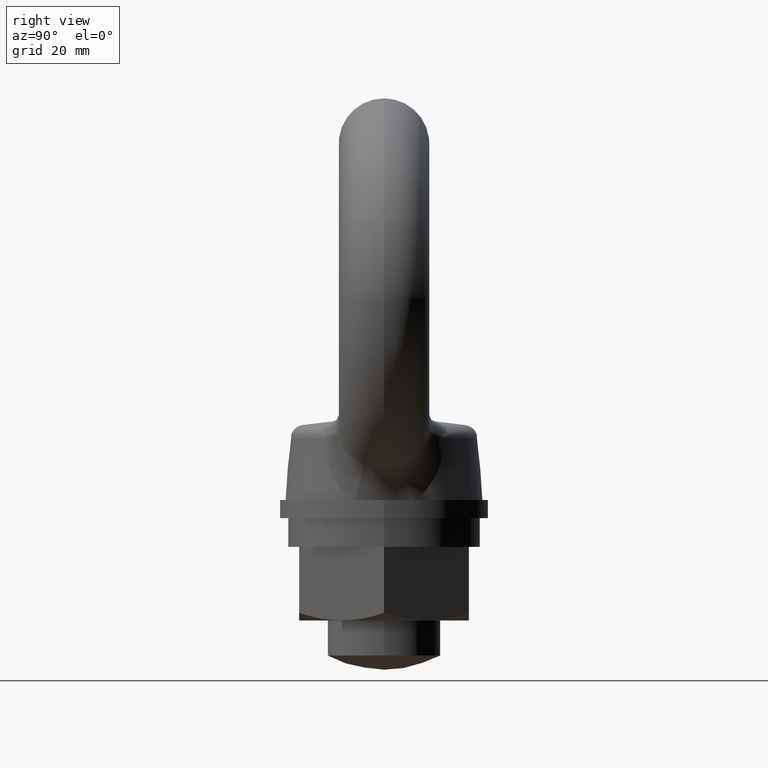
[diagram: clean part render]
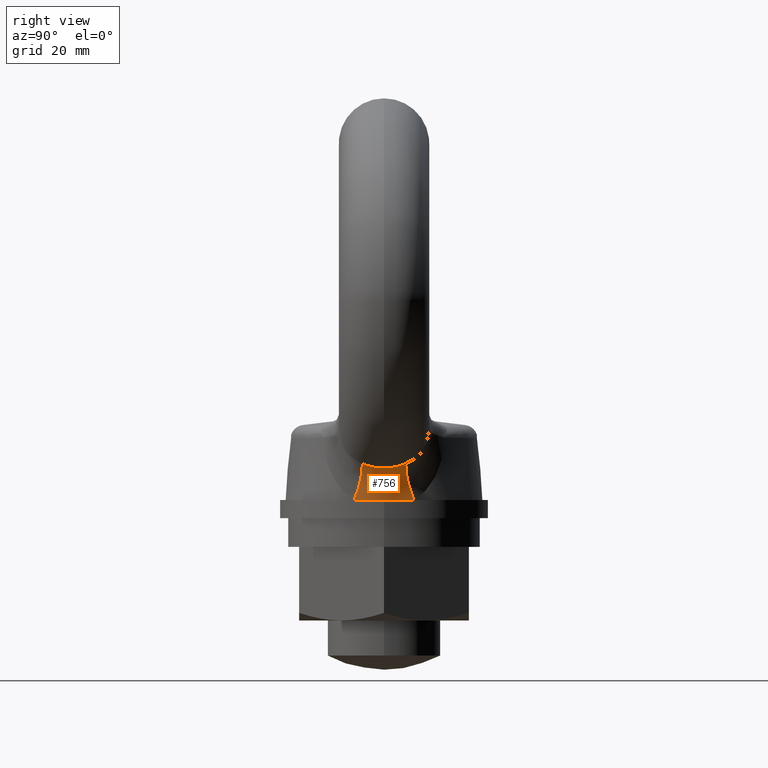
[diagram: same view with one face highlighted and labeled with its STEP entity id]
A machine part, right view. The second image highlights one B-rep face of the part: STEP entity #756.
In plain terms, the highlighted face is a freeform B-spline surface patch.
Its self-contained STEP definition (entity closure, byte-faithful):
#1 = CARTESIAN_POINT ( 'NONE',  ( 19.12252665471698900, -1.137490150262186100, -30.84726181569379800 ) ) ;
#2 = CARTESIAN_POINT ( 'NONE',  ( 18.78253945220220800, -1.164999154925600000, -31.30640718851755000 ) ) ;
#3 = CARTESIAN_POINT ( 'NONE',  ( 18.49487072539962200, -1.199868535759774700, -31.79580678264857200 ) ) ;
#4 = CARTESIAN_POINT ( 'NONE',  ( 18.20720199859703900, -1.234737916593949200, -32.28520637677959800 ) ) ;
#5 = CARTESIAN_POINT ( 'NONE',  ( 17.97187154556799300, -1.276965275118276500, -32.80482651067328000 ) ) ;
#6 = CARTESIAN_POINT ( 'NONE',  ( 17.79419548573249400, -1.325596959128234800, -33.34292899466400000 ) ) ;
#7 = CARTESIAN_POINT ( 'NONE',  ( 17.61651942589699600, -1.374228643138192900, -33.88103147865472000 ) ) ;
#8 = CARTESIAN_POINT ( 'NONE',  ( 17.49650998747498700, -1.429261307541510800, -34.43757927929896600 ) ) ;
#9 = CARTESIAN_POINT ( 'NONE',  ( 17.43687821175856100, -1.489452111349638000, -35.00000000000000000 ) ) ;
#10 = CARTESIAN_POINT ( 'NONE',  ( 20.79061498668968600, -1.000234474706745100, -29.31270074958353400 ) ) ;
#11 = CARTESIAN_POINT ( 'NONE',  ( 20.32733076305138600, -1.003390029220476700, -29.64080675759947800 ) ) ;
#12 = CARTESIAN_POINT ( 'NONE',  ( 19.89887903144929700, -1.014129462028976700, -30.01798959434681500 ) ) ;
#13 = CARTESIAN_POINT ( 'NONE',  ( 19.51490355737745800, -1.032211045619190200, -30.43575947542821700 ) ) ;
#14 = CARTESIAN_POINT ( 'NONE',  ( 19.13092808330561900, -1.050292629209403700, -30.85352935650961800 ) ) ;
#15 = CARTESIAN_POINT ( 'NONE',  ( 18.79145510164575200, -1.075715128168553100, -31.31185773806184600 ) ) ;
#16 = CARTESIAN_POINT ( 'NONE',  ( 18.50412560806953300, -1.107906322570446200, -31.80042837882610800 ) ) ;
#17 = CARTESIAN_POINT ( 'NONE',  ( 18.21679611449330900, -1.140097516972339100, -32.28899901959037100 ) ) ;
#18 = CARTESIAN_POINT ( 'NONE',  ( 17.98162974060688800, -1.179055207373952000, -32.80777853828624300 ) ) ;
#19 = CARTESIAN_POINT ( 'NONE',  ( 17.80391970661353100, -1.223902518265836700, -33.34509003492151900 ) ) ;
#20 = CARTESIAN_POINT ( 'NONE',  ( 17.62620967262017000, -1.268749829157721500, -33.88240153155678800 ) ) ;
#21 = CARTESIAN_POINT ( 'NONE',  ( 17.50596812044570400, -1.319483696375689300, -34.43820829466285000 ) ) ;
#22 = CARTESIAN_POINT ( 'NONE',  ( 17.44590149575548900, -1.374962181442269000, -35.00000000000000000 ) ) ;
#23 = CARTESIAN_POINT ( 'NONE',  ( 20.81240739417937700, -0.6668110214211846500, -29.34875718951726900 ) ) ;
#24 = CARTESIAN_POINT ( 'NONE',  ( 20.35259575383045300, -0.6693860478188095000, -29.67459525035880900 ) ) ;
#25 = CARTESIAN_POINT ( 'NONE',  ( 19.92728547055703800, -0.6769056562285887800, -30.04905342392270000 ) ) ;
#26 = CARTESIAN_POINT ( 'NONE',  ( 19.54590963410858300, -0.6892041006134278500, -30.46382647184779900 ) ) ;
#27 = CARTESIAN_POINT ( 'NONE',  ( 19.16453379766012700, -0.7015025449982669200, -30.87859951977289800 ) ) ;
#28 = CARTESIAN_POINT ( 'NONE',  ( 18.82711769941994000, -0.7185790211403582100, -31.33365993623905200 ) ) ;
#29 = CARTESIAN_POINT ( 'NONE',  ( 18.54114513874916900, -0.7400574698131242600, -31.81891476353625200 ) ) ;
#30 = CARTESIAN_POINT ( 'NONE',  ( 18.25517257807840100, -0.7615359184858903100, -32.30416959083345300 ) ) ;
#31 = CARTESIAN_POINT ( 'NONE',  ( 18.02066252076245700, -0.7874149363966451700, -32.81958664873813100 ) ) ;
#32 = CARTESIAN_POINT ( 'NONE',  ( 17.84281659013766200, -0.8171247548162354800, -33.35373419595160300 ) ) ;
#33 = CARTESIAN_POINT ( 'NONE',  ( 17.66497065951286800, -0.8468345732358257800, -33.88788174316508200 ) ) ;
#34 = CARTESIAN_POINT ( 'NONE',  ( 17.54380065232857800, -0.8803732517123946700, -34.44072435611837300 ) ) ;
#35 = CARTESIAN_POINT ( 'NONE',  ( 17.48199463174319500, -0.9170024618127835500, -35.00000000000000000 ) ) ;
#36 = CARTESIAN_POINT ( 'NONE',  ( 20.82274002298901600, -0.3334625289407605600, -29.36686800090475900 ) ) ;
#37 = CARTESIAN_POINT ( 'NONE',  ( 20.36473586014141900, -0.3347511732866915700, -29.69161830935685800 ) ) ;
#38 = CARTESIAN_POINT ( 'NONE',  ( 19.94105968690004000, -0.3385125228528809700, -30.06475057672195600 ) ) ;
#39 = CARTESIAN_POINT ( 'NONE',  ( 19.56104010995409200, -0.3446637595449920100, -30.47804908452177100 ) ) ;
#40 = CARTESIAN_POINT ( 'NONE',  ( 19.18102053300814400, -0.3508149962371030500, -30.89134759232158700 ) ) ;
#41 = CARTESIAN_POINT ( 'NONE',  ( 18.84468239224264300, -0.3593557179833267200, -31.34478532540207500 ) ) ;
#42 = CARTESIAN_POINT ( 'NONE',  ( 18.55943126396314800, -0.3700978735837312000, -31.82837837969425400 ) ) ;
#43 = CARTESIAN_POINT ( 'NONE',  ( 18.27418013568365400, -0.3808400291841357300, -32.31197143398642900 ) ) ;
#44 = CARTESIAN_POINT ( 'NONE',  ( 18.04003466525913500, -0.3937829164843167900, -32.82568819955071900 ) ) ;
#45 = CARTESIAN_POINT ( 'NONE',  ( 17.86215032552381700, -0.4086415565843993800, -33.35821753368362900 ) ) ;
#46 = CARTESIAN_POINT ( 'NONE',  ( 17.68426598578849600, -0.4235001966844820800, -33.89074686781653200 ) ) ;
#47 = CARTESIAN_POINT ( 'NONE',  ( 17.56265440410795300, -0.4402736183585805300, -34.44205396187073400 ) ) ;
#48 = CARTESIAN_POINT ( 'NONE',  ( 17.49999325434258100, -0.4585925012885180300, -35.00000000000000000 ) ) ;
#49 = CARTESIAN_POINT ( 'NONE',  ( 17.74548275184614400, -1.731261970816682100, -33.33227947176124000 ) ) ;
#50 = CARTESIAN_POINT ( 'NONE',  ( 17.56800371600522200, -1.795189343156205400, -33.87430136347234800 ) ) ;
#51 = CARTESIAN_POINT ( 'NONE',  ( 17.44917500743281400, -1.867655365799513400, -34.43450269581091300 ) ) ;
#52 = CARTESIAN_POINT ( 'NONE',  ( 17.39172951093110700, -1.946993987332432900, -35.00000000000000000 ) ) ;
#53 = CARTESIAN_POINT ( 'NONE',  ( 20.76510666687038800, -1.333681561823391900, -29.27105583961186500 ) ) ;
#54 = CARTESIAN_POINT ( 'NONE',  ( 20.29784664550114200, -1.337176556434063400, -29.60180978562350900 ) ) ;
#55 = CARTESIAN_POINT ( 'NONE',  ( 19.86579766180035400, -1.350952265482627800, -29.98216322074711500 ) ) ;
#56 = CARTESIAN_POINT ( 'NONE',  ( 19.47884751432667400, -1.374693491815429900, -30.40341144275085500 ) ) ;
#57 = CARTESIAN_POINT ( 'NONE',  ( 19.09189736685299000, -1.398434718148232200, -30.82465966475459500 ) ) ;
#58 = CARTESIAN_POINT ( 'NONE',  ( 18.75007339251903100, -1.432139785365426500, -31.28677291371129200 ) ) ;
#59 = CARTESIAN_POINT ( 'NONE',  ( 18.46119852952047300, -1.475037527712065500, -31.77917534443546500 ) ) ;
#60 = CARTESIAN_POINT ( 'NONE',  ( 18.17232366652191900, -1.517935270058704300, -32.27157777515964200 ) ) ;
#61 = CARTESIAN_POINT ( 'NONE',  ( 17.93641832315040200, -1.570022658565126500, -32.79423460085039500 ) ) ;
#62 = CARTESIAN_POINT ( 'NONE',  ( 17.75888142223107700, -1.630107954172448600, -33.33518437491892400 ) ) ;
#63 = CARTESIAN_POINT ( 'NONE',  ( 17.58134452131175600, -1.690193249779770700, -33.87613414898745400 ) ) ;
#64 = CARTESIAN_POINT ( 'NONE',  ( 17.46218860557736400, -1.758272209970257500, -34.43533865480498000 ) ) ;
#65 = CARTESIAN_POINT ( 'NONE',  ( 17.40414071412073900, -1.832787220838117100, -35.00000000000000000 ) ) ;
#66 = CARTESIAN_POINT ( 'NONE',  ( 20.77204911492844300, -1.250316232483454000, -29.28230422455735400 ) ) ;
#67 = CARTESIAN_POINT ( 'NONE',  ( 20.30585751644923700, -1.253764652809348000, -29.61233852386924800 ) ) ;
#68 = CARTESIAN_POINT ( 'NONE',  ( 19.87477531916084700, -1.266810425723580400, -29.99183189428642400 ) ) ;
#69 = CARTESIAN_POINT ( 'NONE',  ( 19.48862429961001700, -1.289156316343223100, -30.41213795906529400 ) ) ;
#70 = CARTESIAN_POINT ( 'NONE',  ( 19.10247328005918600, -1.311502206962865900, -30.83244402384416800 ) ) ;
#71 = CARTESIAN_POINT ( 'NONE',  ( 18.76128047558808700, -1.343146650683761000, -31.29353335419052200 ) ) ;
#72 = CARTESIAN_POINT ( 'NONE',  ( 18.47281962286678700, -1.383368660517515900, -31.78490049105446500 ) ) ;
#73 = CARTESIAN_POINT ( 'NONE',  ( 18.18435877014548700, -1.423590670351270800, -32.27626762791840800 ) ) ;
#74 = CARTESIAN_POINT ( 'NONE',  ( 17.94865006649157400, -1.472387430051941100, -32.79787816698468800 ) ) ;
#75 = CARTESIAN_POINT ( 'NONE',  ( 17.77106389887990500, -1.528647154273251200, -33.33784773401710300 ) ) ;
#76 = CARTESIAN_POINT ( 'NONE',  ( 17.59347773126823700, -1.584906878494561500, -33.87781730104951800 ) ) ;
#77 = CARTESIAN_POINT ( 'NONE',  ( 17.47402653384435200, -1.648625628069353600, -34.43610808871051200 ) ) ;
#78 = CARTESIAN_POINT ( 'NONE',  ( 17.41543188262489400, -1.718351635042239600, -35.00000000000000000 ) ) ;
#79 = CARTESIAN_POINT ( 'NONE',  ( 20.77899156298649800, -1.166950903143518300, -29.29355260950284300 ) ) ;
#80 = CARTESIAN_POINT ( 'NONE',  ( 20.31386838739733100, -1.170352749184635300, -29.62286726211499000 ) ) ;
#81 = CARTESIAN_POINT ( 'NONE',  ( 19.88375297652134000, -1.182668585964535800, -30.00150056782573000 ) ) ;
#82 = CARTESIAN_POINT ( 'NONE',  ( 19.49840108489336300, -1.203619140871019100, -30.42086447537973400 ) ) ;
#83 = CARTESIAN_POINT ( 'NONE',  ( 19.11304919326538300, -1.224569695777502300, -30.84022838293373800 ) ) ;
#84 = CARTESIAN_POINT ( 'NONE',  ( 18.77248755865714700, -1.254153516002098200, -31.30029379466975200 ) ) ;
#85 = CARTESIAN_POINT ( 'NONE',  ( 18.48444071621310100, -1.291699793322969000, -31.79062563767346500 ) ) ;
#86 = CARTESIAN_POINT ( 'NONE',  ( 18.19639387376905400, -1.329246070643839800, -32.28095748067718100 ) ) ;
#87 = CARTESIAN_POINT ( 'NONE',  ( 17.96088180983274500, -1.374752201538758800, -32.80152173311897500 ) ) ;
#88 = CARTESIAN_POINT ( 'NONE',  ( 17.78324637552873000, -1.427186354374057100, -33.34051109311527500 ) ) ;
#89 = CARTESIAN_POINT ( 'NONE',  ( 17.60561094122471500, -1.479620507209355300, -33.87950045311157500 ) ) ;
#90 = CARTESIAN_POINT ( 'NONE',  ( 17.48586446211134100, -1.538979046168452900, -34.43687752261604400 ) ) ;
#91 = CARTESIAN_POINT ( 'NONE',  ( 17.42672305112905200, -1.603916049246365300, -35.00000000000000000 ) ) ;
#92 = CARTESIAN_POINT ( 'NONE',  ( 20.78516688481726500, -1.083590338028133300, -29.30368663960010200 ) ) ;
#93 = CARTESIAN_POINT ( 'NONE',  ( 20.32101451535662000, -1.086891024570891800, -29.63235963440964600 ) ) ;
#94 = CARTESIAN_POINT ( 'NONE',  ( 19.89177742167236200, -1.098435413479071900, -30.01022363695284800 ) ) ;
#95 = CARTESIAN_POINT ( 'NONE',  ( 19.50715203819467500, -1.117962781870628800, -30.42874272632332100 ) ) ;
#96 = CARTESIAN_POINT ( 'NONE',  ( 20.71214638204154900, -1.828470569741787300, -29.18789995285248700 ) ) ;
#97 = CARTESIAN_POINT ( 'NONE',  ( 20.23715807040331800, -1.831342966740455700, -29.52411253750511800 ) ) ;
#98 = CARTESIAN_POINT ( 'NONE',  ( 19.79811306044525000, -1.848767756310292900, -29.91093913885240200 ) ) ;
#99 = CARTESIAN_POINT ( 'NONE',  ( 19.40539044640423700, -1.880333234312206300, -30.33923521376756900 ) ) ;
#100 = CARTESIAN_POINT ( 'NONE',  ( 19.01266783236322800, -1.911898712314120000, -30.76753128868273600 ) ) ;
#101 = CARTESIAN_POINT ( 'NONE',  ( 18.66629722491737200, -1.957602503110357200, -31.23726454529986500 ) ) ;
#102 = CARTESIAN_POINT ( 'NONE',  ( 18.37446700756694200, -2.016365268259145100, -31.73733048250630200 ) ) ;
#103 = CARTESIAN_POINT ( 'NONE',  ( 18.08263679021651200, -2.075128033407932300, -32.23739641971273100 ) ) ;
#104 = CARTESIAN_POINT ( 'NONE',  ( 17.84536896764879900, -2.146945352224480800, -32.76775733385708400 ) ) ;
#105 = CARTESIAN_POINT ( 'NONE',  ( 17.66827290693812800, -2.230121380958215200, -33.31587534654910600 ) ) ;
#106 = CARTESIAN_POINT ( 'NONE',  ( 17.49117684622745700, -2.313297409691949600, -33.86399335924112800 ) ) ;
#107 = CARTESIAN_POINT ( 'NONE',  ( 17.37426590275124400, -2.407825891960867700, -34.42982714264420000 ) ) ;
#108 = CARTESIAN_POINT ( 'NONE',  ( 17.32030441109776600, -2.511474802656944700, -35.00000000000000000 ) ) ;
#109 = CARTESIAN_POINT ( 'NONE',  ( 20.73206426955165300, -1.664892740400178800, -29.21866539798672200 ) ) ;
#110 = CARTESIAN_POINT ( 'NONE',  ( 20.25990149710808200, -1.668163704087949600, -29.55283099323793600 ) ) ;
#111 = CARTESIAN_POINT ( 'NONE',  ( 19.82341489490155000, -1.684528461275613300, -29.93723992031354100 ) ) ;
#112 = CARTESIAN_POINT ( 'NONE',  ( 19.43280115905180600, -1.713605004542464000, -30.36291208196836800 ) ) ;
#113 = CARTESIAN_POINT ( 'NONE',  ( 19.04218742320206200, -1.742681547809314900, -30.78858424362319500 ) ) ;
#114 = CARTESIAN_POINT ( 'NONE',  ( 18.69747531145294100, -1.784467740302135600, -31.25548830139099400 ) ) ;
#115 = CARTESIAN_POINT ( 'NONE',  ( 18.40671766643295000, -1.837988345549984600, -31.75271698892517200 ) ) ;
#116 = CARTESIAN_POINT ( 'NONE',  ( 18.11596002141296000, -1.891508950797833300, -32.24994567645934800 ) ) ;
#117 = CARTESIAN_POINT ( 'NONE',  ( 17.87917824992121000, -1.956760036192557200, -32.77746238695175400 ) ) ;
#118 = CARTESIAN_POINT ( 'NONE',  ( 17.70190396369913400, -2.032218795376522300, -33.32294382306993400 ) ) ;
#119 = CARTESIAN_POINT ( 'NONE',  ( 17.52462967747706200, -2.107677554560487100, -33.86842525918810800 ) ) ;
#120 = CARTESIAN_POINT ( 'NONE',  ( 17.40687592929704100, -2.193338443268414700, -34.43183126107917500 ) ) ;
#121 = CARTESIAN_POINT ( 'NONE',  ( 17.35139386782395500, -2.287202377587867400, -35.00000000000000000 ) ) ;
#122 = CARTESIAN_POINT ( 'NONE',  ( 20.74895905525275500, -1.499568067577827300, -29.24536120989319700 ) ) ;
#123 = CARTESIAN_POINT ( 'NONE',  ( 20.27928847390849000, -1.502982831657931700, -29.57778347556433500 ) ) ;
#124 = CARTESIAN_POINT ( 'NONE',  ( 19.84505772998527500, -1.518079533733779800, -29.96012183339545100 ) ) ;
#125 = CARTESIAN_POINT ( 'NONE',  ( 19.45630600874494200, -1.544509146033608700, -30.38353682266044200 ) ) ;
#126 = CARTESIAN_POINT ( 'NONE',  ( 19.06755428750461000, -1.570938758333437800, -30.80695181192543300 ) ) ;
#127 = CARTESIAN_POINT ( 'NONE',  ( 18.72430962061620000, -1.608699375100684400, -31.27141290149557700 ) ) ;
#128 = CARTESIAN_POINT ( 'NONE',  ( 18.43450764333643100, -1.656917990836237300, -31.76618199649767500 ) ) ;
#129 = CARTESIAN_POINT ( 'NONE',  ( 18.14470566605666600, -1.705136606571790100, -32.26095109149977000 ) ) ;
#130 = CARTESIAN_POINT ( 'NONE',  ( 17.90836727509844900, -1.763809744382291500, -32.78599251568400800 ) ) ;
#131 = CARTESIAN_POINT ( 'NONE',  ( 17.73095648913047400, -1.831580912336628700, -33.32916758886413800 ) ) ;
#132 = CARTESIAN_POINT ( 'NONE',  ( 17.55354570316250200, -1.899352080290966000, -33.87234266204426800 ) ) ;
#133 = CARTESIAN_POINT ( 'NONE',  ( 17.43507531472089100, -1.976216391622480400, -34.43361221756700300 ) ) ;
#134 = CARTESIAN_POINT ( 'NONE',  ( 17.37828429656205700, -2.060396784084244500, -35.00000000000000000 ) ) ;
#135 = CARTESIAN_POINT ( 'NONE',  ( 20.75740644810330700, -1.416905731166651700, -29.25870911584643300 ) ) ;
#136 = CARTESIAN_POINT ( 'NONE',  ( 20.28898196230870000, -1.420392395442923000, -29.59025971672753400 ) ) ;
#137 = CARTESIAN_POINT ( 'NONE',  ( 19.85587914752713300, -1.434855069962862800, -29.97156278993640700 ) ) ;
#138 = CARTESIAN_POINT ( 'NONE',  ( 19.46805843359150900, -1.459961216779181100, -30.39384919300647800 ) ) ;
#139 = CARTESIAN_POINT ( 'NONE',  ( 19.08023771965588700, -1.485067363595499200, -30.81613559607654900 ) ) ;
#140 = CARTESIAN_POINT ( 'NONE',  ( 18.73772677519782800, -1.520815192499958700, -31.27937520154787500 ) ) ;
#141 = CARTESIAN_POINT ( 'NONE',  ( 18.44840263178817400, -1.566382813479363600, -31.77291450028392500 ) ) ;
#142 = CARTESIAN_POINT ( 'NONE',  ( 18.15907848837851500, -1.611950434458768500, -32.26645379901997800 ) ) ;
#143 = CARTESIAN_POINT ( 'NONE',  ( 17.92296178768706500, -1.667334598477158600, -32.79025758005013800 ) ) ;
#144 = CARTESIAN_POINT ( 'NONE',  ( 18.06620239256520600, -3.211206020041574400, -31.60150270518946100 ) ) ;
#145 = CARTESIAN_POINT ( 'NONE',  ( 17.76578447621609400, -3.305816940397282400, -32.12789213090887600 ) ) ;
#146 = CARTESIAN_POINT ( 'NONE',  ( 17.52513659189919800, -3.424082456674776500, -32.68410831303140200 ) ) ;
#147 = CARTESIAN_POINT ( 'NONE',  ( 17.35057560391222300, -3.562898169184267200, -33.25555090652336100 ) ) ;
#148 = CARTESIAN_POINT ( 'NONE',  ( 17.17601461592524700, -3.701713881693757800, -33.82699350001531300 ) ) ;
#149 = CARTESIAN_POINT ( 'NONE',  ( 17.06755677590819400, -3.861066866682858000, -34.41360930353191300 ) ) ;
#150 = CARTESIAN_POINT ( 'NONE',  ( 17.02804903786337900, -4.036774202766380900, -35.00000000000000000 ) ) ;
#151 = CARTESIAN_POINT ( 'NONE',  ( 20.58301999882522900, -2.630970160677757400, -29.00034992709754900 ) ) ;
#152 = CARTESIAN_POINT ( 'NONE',  ( 20.09161660111605800, -2.629034983027859000, -29.34970047005425500 ) ) ;
#153 = CARTESIAN_POINT ( 'NONE',  ( 19.63769330516007700, -2.649508406757512100, -29.75181290410877800 ) ) ;
#154 = CARTESIAN_POINT ( 'NONE',  ( 19.23275427584533400, -2.691870764882102800, -30.19649841723564500 ) ) ;
#155 = CARTESIAN_POINT ( 'NONE',  ( 18.82781524653058700, -2.734233123006693400, -30.64118393036250900 ) ) ;
#156 = CARTESIAN_POINT ( 'NONE',  ( 18.47189556862646500, -2.798480760982942100, -31.12840401235536100 ) ) ;
#157 = CARTESIAN_POINT ( 'NONE',  ( 18.17401657399268400, -2.882990518524088500, -31.64581243362387400 ) ) ;
#158 = CARTESIAN_POINT ( 'NONE',  ( 17.87613757935890400, -2.967500276065234900, -32.16322085489239400 ) ) ;
#159 = CARTESIAN_POINT ( 'NONE',  ( 17.63632508650178800, -3.072264888100303200, -32.71077279845472000 ) ) ;
#160 = CARTESIAN_POINT ( 'NONE',  ( 17.46065931582628000, -3.194639866745803600, -33.27459162802171700 ) ) ;
#161 = CARTESIAN_POINT ( 'NONE',  ( 17.28499354515077300, -3.317014845391304000, -33.83841045758871500 ) ) ;
#162 = CARTESIAN_POINT ( 'NONE',  ( 17.17348973897416900, -3.456989681962960400, -34.41844732241293800 ) ) ;
#163 = CARTESIAN_POINT ( 'NONE',  ( 17.12897803581949700, -3.611032300888034700, -35.00000000000000000 ) ) ;
#164 = CARTESIAN_POINT ( 'NONE',  ( 20.64251933772108000, -2.314067628650254600, -29.08435918252974500 ) ) ;
#165 = CARTESIAN_POINT ( 'NONE',  ( 20.15829475676939000, -2.314810578488213400, -29.42768305038123000 ) ) ;
#166 = CARTESIAN_POINT ( 'NONE',  ( 19.71088156673513600, -2.334668796950687400, -29.82283079326336800 ) ) ;
#167 = CARTESIAN_POINT ( 'NONE',  ( 19.31127693912312900, -2.373155046069628700, -30.26009028665068000 ) ) ;
#168 = CARTESIAN_POINT ( 'NONE',  ( 18.91167231151112200, -2.411641295188569500, -30.69734978003799200 ) ) ;
#169 = CARTESIAN_POINT ( 'NONE',  ( 18.55990881903867900, -2.468752454961193000, -31.17668538579206600 ) ) ;
#170 = CARTESIAN_POINT ( 'NONE',  ( 18.26463311428865000, -2.543089107458292600, -31.68631556451698800 ) ) ;
#171 = CARTESIAN_POINT ( 'NONE',  ( 17.96935740953862400, -2.617425759955392300, -32.19594574324190700 ) ) ;
#172 = CARTESIAN_POINT ( 'NONE',  ( 17.73059356561264400, -2.708981884883778800, -32.73582895592950600 ) ) ;
#173 = CARTESIAN_POINT ( 'NONE',  ( 17.55421151467204800, -2.815514655039007800, -33.29269492679075200 ) ) ;
#174 = CARTESIAN_POINT ( 'NONE',  ( 17.37782946373145200, -2.922047425194236800, -33.84956089765200500 ) ) ;
#175 = CARTESIAN_POINT ( 'NONE',  ( 17.26384359334685200, -3.043548215655838900, -34.42336423292370300 ) ) ;
#176 = CARTESIAN_POINT ( 'NONE',  ( 17.21505773814449500, -3.177040978999876100, -35.00000000000000000 ) ) ;
#177 = CARTESIAN_POINT ( 'NONE',  ( 20.68893736726805700, -1.990336256044611400, -29.15338636274490700 ) ) ;
#178 = CARTESIAN_POINT ( 'NONE',  ( 20.21087029919200600, -1.992498837323043000, -29.49196937513048800 ) ) ;
#179 = CARTESIAN_POINT ( 'NONE',  ( 19.76903589587521300, -2.010734769857092500, -29.88156969032272400 ) ) ;
#180 = CARTESIAN_POINT ( 'NONE',  ( 19.37401927731053400, -2.044607171564682100, -30.31285357139527300 ) ) ;
#181 = CARTESIAN_POINT ( 'NONE',  ( 18.97900265874585900, -2.078479573272271600, -30.74413745246782200 ) ) ;
#182 = CARTESIAN_POINT ( 'NONE',  ( 18.63083442295780800, -2.127985820393971200, -31.21707149213060000 ) ) ;
#183 = CARTESIAN_POINT ( 'NONE',  ( 18.33785570980751000, -2.191939881325529500, -31.72032550984319600 ) ) ;
#184 = CARTESIAN_POINT ( 'NONE',  ( 18.04487699665721600, -2.255893942257087400, -32.22357952755579200 ) ) ;
#185 = CARTESIAN_POINT ( 'NONE',  ( 17.80711050030340900, -2.334290863110915400, -32.75711454121455500 ) ) ;
#186 = CARTESIAN_POINT ( 'NONE',  ( 17.63025244284943200, -2.425252472318481200, -33.30814853996298600 ) ) ;
#187 = CARTESIAN_POINT ( 'NONE',  ( 17.45339438539545500, -2.516214081526047400, -33.85918253871141600 ) ) ;
#188 = CARTESIAN_POINT ( 'NONE',  ( 17.33745846628311300, -2.619733333192527000, -34.42767283940403200 ) ) ;
#189 = CARTESIAN_POINT ( 'NONE',  ( 17.28522218678000800, -2.733330194771257400, -35.00000000000000000 ) ) ;
#190 = CARTESIAN_POINT ( 'NONE',  ( 16.83628014718128800, -4.657997878138463200, -34.40423650812156400 ) ) ;
#191 = CARTESIAN_POINT ( 'NONE',  ( 16.80764555463946400, -4.878534170468819700, -35.00000000000000000 ) ) ;
#192 = CARTESIAN_POINT ( 'NONE',  ( 20.38072676393212400, -3.401083943873367800, -28.74989947423511400 ) ) ;
#193 = CARTESIAN_POINT ( 'NONE',  ( 19.87060411130749700, -3.387420341223711600, -29.11939078465809100 ) ) ;
#194 = CARTESIAN_POINT ( 'NONE',  ( 19.39964667319534500, -3.405544699693245900, -29.54407376718388900 ) ) ;
#195 = CARTESIAN_POINT ( 'NONE',  ( 18.98088951785600300, -3.454955376817691700, -30.01219412892266900 ) ) ;
#196 = CARTESIAN_POINT ( 'NONE',  ( 18.56213236251665700, -3.504366053942137100, -30.48031449066144900 ) ) ;
#197 = CARTESIAN_POINT ( 'NONE',  ( 18.19561886616836700, -3.585057931604017900, -30.99182374219464700 ) ) ;
#198 = CARTESIAN_POINT ( 'NONE',  ( 17.89149331799017900, -3.694797635726915000, -31.53256443006692000 ) ) ;
#199 = CARTESIAN_POINT ( 'NONE',  ( 17.58736776981198700, -3.804537339849812600, -32.07330511793919200 ) ) ;
#200 = CARTESIAN_POINT ( 'NONE',  ( 17.34566167211015000, -3.943313503240840000, -32.64322123048410900 ) ) ;
#201 = CARTESIAN_POINT ( 'NONE',  ( 17.17306491918829900, -4.107285106274193100, -33.22653874052109300 ) ) ;
#202 = CARTESIAN_POINT ( 'NONE',  ( 17.00046816626645100, -4.271256709307546200, -33.80985625055807700 ) ) ;
#203 = CARTESIAN_POINT ( 'NONE',  ( 16.89699863625354200, -4.460406767275141100, -34.40651473617599300 ) ) ;
#204 = CARTESIAN_POINT ( 'NONE',  ( 16.86552013865217200, -4.669500021706627800, -35.00000000000000000 ) ) ;
#205 = CARTESIAN_POINT ( 'NONE',  ( 20.42734449631610300, -3.249469820632372200, -28.80414310499437700 ) ) ;
#206 = CARTESIAN_POINT ( 'NONE',  ( 19.92097238467786000, -3.238701018448096200, -29.16902687638704000 ) ) ;
#207 = CARTESIAN_POINT ( 'NONE',  ( 19.45343553969705400, -3.257714868778031700, -29.58861735171922900 ) ) ;
#208 = CARTESIAN_POINT ( 'NONE',  ( 19.03743627799407500, -3.305994272152036600, -30.05151587211532400 ) ) ;
#209 = CARTESIAN_POINT ( 'NONE',  ( 18.62143701629110000, -3.354273675526041400, -30.51441439251142300 ) ) ;
#210 = CARTESIAN_POINT ( 'NONE',  ( 18.25701683279400500, -3.431813819280468800, -31.02057479315869800 ) ) ;
#211 = CARTESIAN_POINT ( 'NONE',  ( 17.95407679946576000, -3.536509353555821200, -31.55624624182732400 ) ) ;
#212 = CARTESIAN_POINT ( 'NONE',  ( 17.65113676613751500, -3.641204887831173600, -32.09191769049594700 ) ) ;
#213 = CARTESIAN_POINT ( 'NONE',  ( 17.40970710365479600, -3.773045386074573000, -32.65704676102845400 ) ) ;
#214 = CARTESIAN_POINT ( 'NONE',  ( 17.23634786858880500, -3.928451946400040500, -33.23628002351143400 ) ) ;
#215 = CARTESIAN_POINT ( 'NONE',  ( 17.06298863352281000, -4.083858506725508000, -33.81551328599442000 ) ) ;
#216 = CARTESIAN_POINT ( 'NONE',  ( 16.95771712532580400, -4.262815656411815400, -34.40879296423042200 ) ) ;
#217 = CARTESIAN_POINT ( 'NONE',  ( 16.92339472266488400, -4.460465872944432400, -35.00000000000000000 ) ) ;
#218 = CARTESIAN_POINT ( 'NONE',  ( 20.46933359173322800, -3.096123661849216300, -28.85554564483459900 ) ) ;
#219 = CARTESIAN_POINT ( 'NONE',  ( 19.96675318337613400, -3.087850810927626800, -29.21625477105812200 ) ) ;
#220 = CARTESIAN_POINT ( 'NONE',  ( 19.50266794980849000, -3.107451826802082100, -29.63117884398166200 ) ) ;
#221 = CARTESIAN_POINT ( 'NONE',  ( 19.08946537954682300, -3.154403320300724900, -30.08924315218432000 ) ) ;
#222 = CARTESIAN_POINT ( 'NONE',  ( 18.67626280928515900, -3.201354813799367300, -30.54730746038697500 ) ) ;
#223 = CARTESIAN_POINT ( 'NONE',  ( 18.31398267905824500, -3.275652269037331500, -31.04846791302738400 ) ) ;
#224 = CARTESIAN_POINT ( 'NONE',  ( 18.01229530185147000, -3.375313770800319800, -31.57934784097225000 ) ) ;
#225 = CARTESIAN_POINT ( 'NONE',  ( 17.71060792464469100, -3.474975272563308100, -32.11022776891712000 ) ) ;
#226 = CARTESIAN_POINT ( 'NONE',  ( 17.46954234459790100, -3.599991240962015400, -32.67077607031973900 ) ) ;
#227 = CARTESIAN_POINT ( 'NONE',  ( 17.29553374795519400, -3.747027320403501600, -33.24603054577417500 ) ) ;
#228 = CARTESIAN_POINT ( 'NONE',  ( 17.12152515131248600, -3.894063399844987400, -33.82128502122861800 ) ) ;
#229 = CARTESIAN_POINT ( 'NONE',  ( 17.01459029437520300, -4.063105459042810200, -34.41119029409139800 ) ) ;
#230 = CARTESIAN_POINT ( 'NONE',  ( 16.97758453888531700, -4.249645153705556800, -35.00000000000000000 ) ) ;
#231 = CARTESIAN_POINT ( 'NONE',  ( 20.50722906076389400, -2.941072494792061700, -28.90381373892224900 ) ) ;
#232 = CARTESIAN_POINT ( 'NONE',  ( 20.00837432262277800, -2.934912201627702700, -29.26073667072349900 ) ) ;
#233 = CARTESIAN_POINT ( 'NONE',  ( 19.54767640159235100, -2.954804020120557900, -29.67139019735736800 ) ) ;
#234 = CARTESIAN_POINT ( 'NONE',  ( 19.13722834497966100, -3.000225801827849400, -30.12499490720142600 ) ) ;
#235 = CARTESIAN_POINT ( 'NONE',  ( 18.72678028836697100, -3.045647583535140900, -30.57859961704548700 ) ) ;
#236 = CARTESIAN_POINT ( 'NONE',  ( 18.36662030891431700, -3.116595099685866900, -31.07511327947004200 ) ) ;
#243 = CARTESIAN_POINT ( 'NONE',  ( 20.22635143677747000, -3.850677136497437000, -28.57893508878743600 ) ) ;
#244 = CARTESIAN_POINT ( 'NONE',  ( 19.70521842837757400, -3.827131712131523600, -28.96359996814038600 ) ) ;
#245 = CARTESIAN_POINT ( 'NONE',  ( 19.22419701256679400, -3.841687431277160900, -29.40487572114847800 ) ) ;
#246 = CARTESIAN_POINT ( 'NONE',  ( 18.79737097366659200, -3.893918118295692100, -29.88984227330486800 ) ) ;
#247 = CARTESIAN_POINT ( 'NONE',  ( 18.37054493476639300, -3.946148805314223300, -30.37480882546125800 ) ) ;
#248 = CARTESIAN_POINT ( 'NONE',  ( 17.99796378818150400, -4.036048401007351800, -30.90340991657345500 ) ) ;
#249 = CARTESIAN_POINT ( 'NONE',  ( 17.69053630499418300, -4.160984742908478800, -31.46016868113275000 ) ) ;
#250 = CARTESIAN_POINT ( 'NONE',  ( 17.38310882180686100, -4.285921084809606500, -32.01692744569204800 ) ) ;
#251 = CARTESIAN_POINT ( 'NONE',  ( 17.14087066618674300, -4.445879679253934600, -32.60177929500644500 ) ) ;
#252 = CARTESIAN_POINT ( 'NONE',  ( 16.97091430808640000, -4.636177112425631500, -33.19760040249563800 ) ) ;
#253 = CARTESIAN_POINT ( 'NONE',  ( 16.80095794998605600, -4.826474545597328400, -33.79342150998483900 ) ) ;
#254 = CARTESIAN_POINT ( 'NONE',  ( 16.70330310577021400, -5.047088741396150300, -34.40014275539703400 ) ) ;
#255 = CARTESIAN_POINT ( 'NONE',  ( 16.68080900315447600, -5.291560355913994800, -35.00000000000000000 ) ) ;
#256 = CARTESIAN_POINT ( 'NONE',  ( 20.28282807573971900, -3.702674665923130900, -28.63853266267123800 ) ) ;
#257 = CARTESIAN_POINT ( 'NONE',  ( 19.76524309151779200, -3.682820161910242100, -29.01767545898982800 ) ) ;
#258 = CARTESIAN_POINT ( 'NONE',  ( 19.28747326953293100, -3.698862160331716900, -29.45297337532415900 ) ) ;
#259 = CARTESIAN_POINT ( 'NONE',  ( 18.86323735765566000, -3.750339134069273300, -29.93192889935695100 ) ) ;
#260 = CARTESIAN_POINT ( 'NONE',  ( 18.43900144577839100, -3.801816107806829300, -30.41088442338973900 ) ) ;
#261 = CARTESIAN_POINT ( 'NONE',  ( 18.06834674747258500, -3.888722319005069000, -30.93344416409454600 ) ) ;
#262 = CARTESIAN_POINT ( 'NONE',  ( 17.76191662674171600, -4.008563678234393600, -31.48460466370414700 ) ) ;
#263 = CARTESIAN_POINT ( 'NONE',  ( 17.45548650601084600, -4.128405037463718200, -32.03576516331375500 ) ) ;
#264 = CARTESIAN_POINT ( 'NONE',  ( 17.21331513456291900, -4.281168201625254400, -32.61546497592684800 ) ) ;
#265 = CARTESIAN_POINT ( 'NONE',  ( 17.04235714129644600, -4.462470161503918400, -33.20705919893773500 ) ) ;
#266 = CARTESIAN_POINT ( 'NONE',  ( 16.87139914802996900, -4.643772121382582400, -33.79865342194861500 ) ) ;
#267 = CARTESIAN_POINT ( 'NONE',  ( 16.77167360438849600, -4.853592696641721100, -34.40207609373827300 ) ) ;
#268 = CARTESIAN_POINT ( 'NONE',  ( 16.74604558554774100, -5.085912324383110100, -35.00000000000000000 ) ) ;
#269 = CARTESIAN_POINT ( 'NONE',  ( 20.33410903154814500, -3.552698067114362000, -28.69565584347585100 ) ) ;
#270 = CARTESIAN_POINT ( 'NONE',  ( 19.82023583793713300, -3.536139663999324300, -29.06975469292914100 ) ) ;
#271 = CARTESIAN_POINT ( 'NONE',  ( 19.34585780669364000, -3.553374530608457900, -29.49953018264855200 ) ) ;
#272 = CARTESIAN_POINT ( 'NONE',  ( 18.92434275771792700, -3.603916481483344600, -29.97287238573001400 ) ) ;
#273 = CARTESIAN_POINT ( 'NONE',  ( 18.50282770874221300, -3.654458432358231000, -30.44621458881147900 ) ) ;
#274 = CARTESIAN_POINT ( 'NONE',  ( 18.13422089954273300, -3.738302043927564700, -30.96307269123059700 ) ) ;
#275 = CARTESIAN_POINT ( 'NONE',  ( 17.82890983651459700, -3.853085917898007000, -31.50888261830651200 ) ) ;
#276 = CARTESIAN_POINT ( 'NONE',  ( 17.52359877348646200, -3.967869791868449800, -32.05469254538243000 ) ) ;
#277 = CARTESIAN_POINT ( 'NONE',  ( 17.28161624056550500, -4.113581620407105200, -32.62939569993977100 ) ) ;
#278 = CARTESIAN_POINT ( 'NONE',  ( 17.10978196978779700, -4.286118266148343500, -33.21679745753075300 ) ) ;
#279 = CARTESIAN_POINT ( 'NONE',  ( 16.93794769901008800, -4.458654911889581700, -33.80419921512174100 ) ) ;
#285 = DIRECTION ( 'NONE',  ( 0.0000000000000000000, -0.3879327672966660900, 0.9216876738123119800 ) ) ;
#286 = DIRECTION ( 'NONE',  ( 0.3116533288331315700, -0.8757838265485052800, -0.3686121156219445700 ) ) ;
#287 = AXIS2_PLACEMENT_3D ( 'NONE', #294, #286, #285 ) ;
#288 = CIRCLE ( 'NONE', #287, 8.000000000000000000 ) ;
#294 = CARTESIAN_POINT ( 'NONE',  ( 24.27730405642605000, 7.701354272995399900, -34.30275098937445200 ) ) ;
#532 = EDGE_CURVE ( 'NONE', #587, #533, #2954, .T. ) ;
#533 = VERTEX_POINT ( 'NONE', #2953 ) ;
#563 = VERTEX_POINT ( 'NONE', #3137 ) ;
#585 = EDGE_CURVE ( 'NONE', #586, #587, #3173, .T. ) ;
#586 = VERTEX_POINT ( 'NONE', #3172 ) ;
#587 = VERTEX_POINT ( 'NONE', #3174 ) ;
#701 = EDGE_CURVE ( 'NONE', #563, #702, #3514, .T. ) ;
#702 = VERTEX_POINT ( 'NONE', #3515 ) ;
#728 = EDGE_CURVE ( 'NONE', #586, #702, #5184, .T. ) ;
#756 = ADVANCED_FACE ( 'NONE', ( #9986 ), #10019, .F. ) ;
#757 = EDGE_LOOP ( 'NONE', ( #758, #764, #765, #767, #768 ) ) ;
#758 = ORIENTED_EDGE ( 'NONE', *, *, #728, .T. ) ;
#764 = ORIENTED_EDGE ( 'NONE', *, *, #701, .F. ) ;
#765 = ORIENTED_EDGE ( 'NONE', *, *, #766, .F. ) ;
#766 = EDGE_CURVE ( 'NONE', #533, #563, #288, .T. ) ;
#767 = ORIENTED_EDGE ( 'NONE', *, *, #532, .F. ) ;
#768 = ORIENTED_EDGE ( 'NONE', *, *, #585, .F. ) ;
#2945 = CARTESIAN_POINT ( 'NONE',  ( 20.22635143677735000, 3.850677136497699900, -28.57893508878720100 ) ) ;
#2946 = CARTESIAN_POINT ( 'NONE',  ( 20.45218448737297800, 3.258859881794904800, -28.81724781712205500 ) ) ;
#2947 = CARTESIAN_POINT ( 'NONE',  ( 20.59603642070353000, 2.638285941380819300, -29.01523389992597800 ) ) ;
#2948 = CARTESIAN_POINT ( 'NONE',  ( 20.73540599022221900, 1.666234829499337700, -29.22248958426969900 ) ) ;
#2949 = CARTESIAN_POINT ( 'NONE',  ( 20.76888547548119100, 1.332880035850261900, -29.27674697320312400 ) ) ;
#2950 = CARTESIAN_POINT ( 'NONE',  ( 20.81241227235395300, 0.6665516782714809900, -29.34876666378846000 ) ) ;
#2951 = CARTESIAN_POINT ( 'NONE',  ( 20.82274396233960100, 0.3333125823818174900, -29.36687477207694400 ) ) ;
#2952 = CARTESIAN_POINT ( 'NONE',  ( 20.82274396233959700, 2.608593644003436100E-016, -29.36687477207695500 ) ) ;
#2953 = CARTESIAN_POINT ( 'NONE',  ( 20.22635143677735000, 3.850677136497699900, -28.57893508878720100 ) ) ;
#2954 = B_SPLINE_CURVE_WITH_KNOTS ( 'NONE', 3,
 ( #2952, #2951, #2950, #2949, #2948, #2947, #2946, #2945 ),
 .UNSPECIFIED., .F., .F.,
 ( 4, 2, 2, 4 ),
 ( 0.004061130604967873100, 0.005076329865826376800, 0.006091529126684881400, 0.008121927648401888700 ),
 .UNSPECIFIED. ) ;
#3137 = CARTESIAN_POINT ( 'NONE',  ( 16.68080900315434800, 5.291560355914360700, -35.00000000000000000 ) ) ;
#3158 = CARTESIAN_POINT ( 'NONE',  ( 20.82274396233959700, 2.608593644003436100E-016, -29.36687477207695500 ) ) ;
#3159 = CARTESIAN_POINT ( 'NONE',  ( 20.82274396233959700, -0.3333399613064573800, -29.36687477207694700 ) ) ;
#3160 = CARTESIAN_POINT ( 'NONE',  ( 20.81241133440935100, -0.6667534197649370700, -29.34876368838754200 ) ) ;
#3161 = CARTESIAN_POINT ( 'NONE',  ( 20.76881765416469200, -1.333730597102416300, -29.27663618137728100 ) ) ;
#3162 = CARTESIAN_POINT ( 'NONE',  ( 20.73534077858353100, -1.666745450908854800, -29.22238999710291900 ) ) ;
#3163 = CARTESIAN_POINT ( 'NONE',  ( 20.59604896188286100, -2.638086811658063400, -29.01525777578670400 ) ) ;
#3164 = CARTESIAN_POINT ( 'NONE',  ( 20.45220719360045800, -3.258800377939267400, -28.81727177811009400 ) ) ;
#3171 = CARTESIAN_POINT ( 'NONE',  ( 20.22635143677745300, -3.850677136497409900, -28.57893508878730100 ) ) ;
#3172 = CARTESIAN_POINT ( 'NONE',  ( 20.22635143677745300, -3.850677136497409900, -28.57893508878730100 ) ) ;
#3173 = B_SPLINE_CURVE_WITH_KNOTS ( 'NONE', 3,
 ( #3171, #3164, #3163, #3162, #3161, #3160, #3159, #3158 ),
 .UNSPECIFIED., .F., .F.,
 ( 4, 2, 2, 4 ),
 ( 0.0000000000000000000, 0.002030565302483936600, 0.003045847953725904600, 0.004061130604967873100 ),
 .UNSPECIFIED. ) ;
#3174 = CARTESIAN_POINT ( 'NONE',  ( 20.82274396233959700, 2.608593644003436100E-016, -29.36687477207695500 ) ) ;
#3510 = DIRECTION ( 'NONE',  ( -1.000000000000000000, 0.0000000000000000000, 0.0000000000000000000 ) ) ;
#3511 = DIRECTION ( 'NONE',  ( 0.0000000000000000000, 0.0000000000000000000, -1.000000000000000000 ) ) ;
#3512 = CARTESIAN_POINT ( 'NONE',  ( 0.0000000000000000000, 0.0000000000000000000, -35.00000000000000000 ) ) ;
#3513 = AXIS2_PLACEMENT_3D ( 'NONE', #3512, #3511, #3510 ) ;
#3514 = CIRCLE ( 'NONE', #3513, 17.50000000000000000 ) ;
#3515 = CARTESIAN_POINT ( 'NONE',  ( 16.68080900315450100, -5.291560355913960100, -35.00000000000000000 ) ) ;
#5180 = DIRECTION ( 'NONE',  ( 0.0000000000000000000, -0.3879327672966316200, -0.9216876738123265200 ) ) ;
#5181 = DIRECTION ( 'NONE',  ( -0.3116533288331110300, -0.8757838265485250500, 0.3686121156219145400 ) ) ;
#5182 = CARTESIAN_POINT ( 'NONE',  ( 24.27730405642624900, -7.701354272994819900, -34.30275098937470100 ) ) ;
#5183 = AXIS2_PLACEMENT_3D ( 'NONE', #5182, #5181, #5180 ) ;
#5184 = CIRCLE ( 'NONE', #5183, 7.999999999999998200 ) ;
#6074 = CARTESIAN_POINT ( 'NONE',  ( 18.17250156028183000, 1.516623619495387700, -32.27164677921396000 ) ) ;
#6075 = CARTESIAN_POINT ( 'NONE',  ( 17.93659908062794600, 1.568665110300891300, -32.79428817796566900 ) ) ;
#6076 = CARTESIAN_POINT ( 'NONE',  ( 19.47899227593177300, 1.373504042983879400, -30.40354007757594700 ) ) ;
#6077 = CARTESIAN_POINT ( 'NONE',  ( 19.09205386489961900, 1.397226085492617500, -30.82477436232103300 ) ) ;
#6078 = CARTESIAN_POINT ( 'NONE',  ( 18.75023915499920700, 1.430902594119265900, -31.28687248083171500 ) ) ;
#6079 = CARTESIAN_POINT ( 'NONE',  ( 17.59363300792284000, 1.583558873153968500, -33.87783884243205500 ) ) ;
#6080 = CARTESIAN_POINT ( 'NONE',  ( 17.47417803172363500, 1.647221800076468200, -34.43611793621251100 ) ) ;
#6081 = CARTESIAN_POINT ( 'NONE',  ( 17.41557638332636100, 1.716886494945178300, -35.00000000000000000 ) ) ;
#6082 = CARTESIAN_POINT ( 'NONE',  ( 20.76520979209579900, 1.332521290438841500, -29.27122182763469700 ) ) ;
#6083 = CARTESIAN_POINT ( 'NONE',  ( 20.29796546666042500, 1.336016098909652600, -29.60196509685757200 ) ) ;
#6084 = CARTESIAN_POINT ( 'NONE',  ( 19.86593068696393200, 1.349782000475141500, -29.98230579283085700 ) ) ;
#6085 = CARTESIAN_POINT ( 'NONE',  ( 20.75750728089583300, 1.415858193066320500, -29.25886983588974700 ) ) ;
#6127 = CARTESIAN_POINT ( 'NONE',  ( 20.32739264142602300, 1.002571642332789700, -29.64088951361907200 ) ) ;
#6128 = CARTESIAN_POINT ( 'NONE',  ( 19.89894860411219900, 1.013303184768023800, -30.01806567714632100 ) ) ;
#6129 = CARTESIAN_POINT ( 'NONE',  ( 19.51497949729272100, 1.031370597630661300, -30.43582821836811200 ) ) ;
#6130 = CARTESIAN_POINT ( 'NONE',  ( 19.13101039047324300, 1.049438010493298800, -30.85359075958990600 ) ) ;
#6131 = CARTESIAN_POINT ( 'NONE',  ( 18.79154244671904900, 1.074840059427030200, -31.31191113718532300 ) ) ;
#6132 = CARTESIAN_POINT ( 'NONE',  ( 18.50421627669334200, 1.107005005127684300, -31.80047365676067600 ) ) ;
#6133 = CARTESIAN_POINT ( 'NONE',  ( 18.21689010666763800, 1.139169950828338600, -32.28903617633602600 ) ) ;
#6134 = CARTESIAN_POINT ( 'NONE',  ( 17.98172534034586800, 1.178095595803448200, -32.80780745955247800 ) ) ;
#6135 = CARTESIAN_POINT ( 'NONE',  ( 17.80401497358884600, 1.222905816980006700, -33.34511120686174500 ) ) ;
#6136 = CARTESIAN_POINT ( 'NONE',  ( 17.62630460683182300, 1.267716038156565100, -33.88241495417101100 ) ) ;
#6137 = CARTESIAN_POINT ( 'NONE',  ( 17.50606078071996300, 1.318407774123420400, -34.43821445725875900 ) ) ;
#6138 = CARTESIAN_POINT ( 'NONE',  ( 17.44598989589250600, 1.373840075269595800, -35.00000000000000000 ) ) ;
#6139 = CARTESIAN_POINT ( 'NONE',  ( 20.78522984623536000, 1.082699347203939000, -29.30379026274046300 ) ) ;
#6140 = CARTESIAN_POINT ( 'NONE',  ( 20.32108742239049400, 1.085998767900567200, -29.63245671177188700 ) ) ;
#6141 = CARTESIAN_POINT ( 'NONE',  ( 19.89185932649550600, 1.097534770394371400, -30.01031286071865600 ) ) ;
#6142 = CARTESIAN_POINT ( 'NONE',  ( 19.50724138681215100, 1.117046831935062600, -30.42882332077235900 ) ) ;
#6143 = CARTESIAN_POINT ( 'NONE',  ( 19.12262344712879500, 1.136558893475753600, -30.84733378082606600 ) ) ;
#6144 = CARTESIAN_POINT ( 'NONE',  ( 18.78264213168977300, 1.164045672015694600, -31.30646975161267800 ) ) ;
#6145 = CARTESIAN_POINT ( 'NONE',  ( 18.49497728309140100, 1.198886434923716000, -31.79585981436344600 ) ) ;
#6146 = CARTESIAN_POINT ( 'NONE',  ( 18.20731243449302600, 1.233727197831737500, -32.28524987711421800 ) ) ;
#6147 = CARTESIAN_POINT ( 'NONE',  ( 17.97198384887558500, 1.275919548793714500, -32.80486035375417900 ) ) ;
#6148 = CARTESIAN_POINT ( 'NONE',  ( 17.79430738250181000, 1.324510665358694900, -33.34295376055165100 ) ) ;
#6149 = CARTESIAN_POINT ( 'NONE',  ( 17.61663091612803500, 1.373101781923675500, -33.88104716734912400 ) ) ;
#6150 = CARTESIAN_POINT ( 'NONE',  ( 17.49661879622373900, 1.428088322065858000, -34.43758647457922000 ) ) ;
#6151 = CARTESIAN_POINT ( 'NONE',  ( 17.43698201187721300, 1.488228537466234700, -35.00000000000000000 ) ) ;
#6152 = CARTESIAN_POINT ( 'NONE',  ( 20.77906612457503100, 1.165976493637669800, -29.29367452973984200 ) ) ;
#6153 = CARTESIAN_POINT ( 'NONE',  ( 20.31395460079936300, 1.169377327260044500, -29.62298144014815200 ) ) ;
#6154 = CARTESIAN_POINT ( 'NONE',  ( 19.88384973212627600, 1.181684275993210700, -30.00160547181914700 ) ) ;
#6155 = CARTESIAN_POINT ( 'NONE',  ( 19.49850655887377500, 1.202618282235184100, -30.42095920206942200 ) ) ;
#6156 = CARTESIAN_POINT ( 'NONE',  ( 19.11316338562127700, 1.223552288477157700, -30.84031293231969400 ) ) ;
#6157 = CARTESIAN_POINT ( 'NONE',  ( 18.77260864233897300, 1.253111900707400100, -31.30036726704209100 ) ) ;
#6158 = CARTESIAN_POINT ( 'NONE',  ( 18.48456633162791400, 1.290626891831566000, -31.79068789274732500 ) ) ;
#6159 = CARTESIAN_POINT ( 'NONE',  ( 18.19652402091685400, 1.328141882955732100, -32.28100851845255900 ) ) ;
#6160 = CARTESIAN_POINT ( 'NONE',  ( 17.96101412684933500, 1.373609651872138100, -32.80156141741940700 ) ) ;
#6161 = CARTESIAN_POINT ( 'NONE',  ( 17.78337819105241000, 1.425999286291942400, -33.34054012033545400 ) ) ;
#6162 = CARTESIAN_POINT ( 'NONE',  ( 17.60574225525548500, 1.478388920711746900, -33.87951882325150200 ) ) ;
#6163 = CARTESIAN_POINT ( 'NONE',  ( 17.48599260211476600, 1.537696788255750000, -34.43688593647082300 ) ) ;
#6164 = CARTESIAN_POINT ( 'NONE',  ( 17.42684528406010400, 1.602578180410461500, -35.00000000000000000 ) ) ;
#6165 = CARTESIAN_POINT ( 'NONE',  ( 20.77213795833541400, 1.249248892038255600, -29.28244817868726800 ) ) ;
#6166 = CARTESIAN_POINT ( 'NONE',  ( 20.30596003372989600, 1.252696713084848500, -29.61247326850286400 ) ) ;
#6167 = CARTESIAN_POINT ( 'NONE',  ( 19.87489020954510400, 1.265733138234176100, -29.99195563232500200 ) ) ;
#6168 = CARTESIAN_POINT ( 'NONE',  ( 19.48874941740277600, 1.288061162609531700, -30.41224963982268300 ) ) ;
#6169 = CARTESIAN_POINT ( 'NONE',  ( 19.10260862526044800, 1.310389186984887600, -30.83254364732036400 ) ) ;
#6170 = CARTESIAN_POINT ( 'NONE',  ( 18.76142389866909000, 1.342007247413332900, -31.29361987393690500 ) ) ;
#6171 = CARTESIAN_POINT ( 'NONE',  ( 18.47296834463421800, 1.382194999319446400, -31.78497376138508200 ) ) ;
#6172 = CARTESIAN_POINT ( 'NONE',  ( 18.18451279059934200, 1.422382751225559800, -32.27632764883325900 ) ) ;
#6173 = CARTESIAN_POINT ( 'NONE',  ( 17.94880660373863900, 1.471137381086514700, -32.79792479769253800 ) ) ;
#6174 = CARTESIAN_POINT ( 'NONE',  ( 17.77121980583073900, 1.527348127120241600, -33.33788182006229300 ) ) ;
#6222 = CARTESIAN_POINT ( 'NONE',  ( 18.27419441127073400, 0.3804123649242834900, -32.31197722087985400 ) ) ;
#6223 = CARTESIAN_POINT ( 'NONE',  ( 18.04004920476065600, 0.3933407180109068600, -32.82569271824433300 ) ) ;
#6224 = CARTESIAN_POINT ( 'NONE',  ( 17.86216482897243900, 0.4081826726030853300, -33.35822084992427200 ) ) ;
#6225 = CARTESIAN_POINT ( 'NONE',  ( 17.68428045318422200, 0.4230246271952637400, -33.89074898160420400 ) ) ;
#6226 = CARTESIAN_POINT ( 'NONE',  ( 17.56266853535584000, 0.4397792131577494800, -34.44205493941993300 ) ) ;
#6227 = CARTESIAN_POINT ( 'NONE',  ( 17.50000674186884100, 0.4580775249005668000, -35.00000000000000000 ) ) ;
#6228 = CARTESIAN_POINT ( 'NONE',  ( 20.81242241371157000, 0.6662901694433794900, -29.34878425001827700 ) ) ;
#6229 = CARTESIAN_POINT ( 'NONE',  ( 20.35261351756812700, 0.6688631400616849000, -29.67462072100781600 ) ) ;
#6230 = CARTESIAN_POINT ( 'NONE',  ( 19.92730571457897100, 0.6763768422626385000, -30.04907694285698800 ) ) ;
#6231 = CARTESIAN_POINT ( 'NONE',  ( 19.54593193921500900, 0.6886656604130612100, -30.46384780875113000 ) ) ;
#6232 = CARTESIAN_POINT ( 'NONE',  ( 19.16455816385104800, 0.7009544785634839200, -30.87861867464527400 ) ) ;
#6233 = CARTESIAN_POINT ( 'NONE',  ( 18.82714370683614600, 0.7180176090723777700, -31.33367667947592500 ) ) ;
#6234 = CARTESIAN_POINT ( 'NONE',  ( 18.54117225110110900, 0.7394792859435630500, -31.81892902634960400 ) ) ;
#6235 = CARTESIAN_POINT ( 'NONE',  ( 18.25520079536607600, 0.7609409628147484300, -32.30418137322328700 ) ) ;
#6236 = CARTESIAN_POINT ( 'NONE',  ( 18.02069130622699000, 0.7867997838423889100, -32.81959588274569500 ) ) ;
#6237 = CARTESIAN_POINT ( 'NONE',  ( 17.84284533793698200, 0.8164864234652597900, -33.35374099210212500 ) ) ;
#6238 = CARTESIAN_POINT ( 'NONE',  ( 17.66499936964697800, 0.8461730630881305600, -33.88788610145854800 ) ) ;
#6239 = CARTESIAN_POINT ( 'NONE',  ( 17.54382871870486900, 0.8796855823536760000, -34.44072638797692300 ) ) ;
#6240 = CARTESIAN_POINT ( 'NONE',  ( 17.48202143195368300, 0.9162862264830464700, -35.00000000000000000 ) ) ;
#6241 = CARTESIAN_POINT ( 'NONE',  ( 20.79066835973060600, 0.9994175116518262400, -29.31278906019602800 ) ) ;
#6242 = CARTESIAN_POINT ( 'NONE',  ( 20.82274396123336000, -0.0001872308511170125400, -29.36687477017550000 ) ) ;
#6243 = CARTESIAN_POINT ( 'NONE',  ( 20.36474046608982700, -0.0001879543926242320300, -29.69162466565296300 ) ) ;
#6244 = CARTESIAN_POINT ( 'NONE',  ( 19.94106489663206400, -0.0001900662961272993200, -30.06475643211850000 ) ) ;
#6245 = CARTESIAN_POINT ( 'NONE',  ( 19.56104582033496400, -0.0001935200613421550500, -30.47805438495060300 ) ) ;
#6246 = CARTESIAN_POINT ( 'NONE',  ( 19.18102674403786500, -0.0001969738265570107700, -30.89135233778271000 ) ) ;
#6247 = CARTESIAN_POINT ( 'NONE',  ( 18.84468900061491300, -0.0002017692277304131700, -31.34478946201457800 ) ) ;
#6248 = CARTESIAN_POINT ( 'NONE',  ( 18.55943813704605100, -0.0002078006788275750800, -31.82838189472386100 ) ) ;
#6249 = CARTESIAN_POINT ( 'NONE',  ( 18.27418727347719200, -0.0002138321299247369900, -32.31197432743314100 ) ) ;
#6250 = CARTESIAN_POINT ( 'NONE',  ( 18.04004193500989600, -0.0002210992367035624800, -32.82569045889752600 ) ) ;
#6251 = CARTESIAN_POINT ( 'NONE',  ( 17.86215757724812600, -0.0002294419906556064400, -33.35821919180394700 ) ) ;
#6252 = CARTESIAN_POINT ( 'NONE',  ( 17.68427321948636100, -0.0002377847446076504400, -33.89074792471036800 ) ) ;
#6253 = CARTESIAN_POINT ( 'NONE',  ( 17.56266146973189600, -0.0002472026004139256900, -34.44205445064533700 ) ) ;
#6254 = CARTESIAN_POINT ( 'NONE',  ( 17.49999999810571100, -0.0002574881939739481800, -35.00000000000000000 ) ) ;
#6255 = CARTESIAN_POINT ( 'NONE',  ( 20.82274789947770800, 0.3330880672385241300, -29.36688153944624300 ) ) ;
#6256 = CARTESIAN_POINT ( 'NONE',  ( 20.36474507203823900, 0.3343752645014406700, -29.69163102194906800 ) ) ;
#6257 = CARTESIAN_POINT ( 'NONE',  ( 19.94107010636409100, 0.3381323902606239200, -30.06476228751504100 ) ) ;
#6258 = CARTESIAN_POINT ( 'NONE',  ( 19.56105153071584000, 0.3442767194223052000, -30.47805968537943500 ) ) ;
#6259 = CARTESIAN_POINT ( 'NONE',  ( 19.18103295506759000, 0.3504210485839864800, -30.89135708324382900 ) ) ;
#6260 = CARTESIAN_POINT ( 'NONE',  ( 18.84469560898718000, 0.3589521795278632400, -31.34479359862708100 ) ) ;
#6261 = CARTESIAN_POINT ( 'NONE',  ( 18.55944501012895700, 0.3696822722260733600, -31.82838540975346900 ) ) ;
#6262 = CARTESIAN_POINT ( 'NONE',  ( 17.46236346133250100, 1.756746811897186700, -34.43534993595420000 ) ) ;
#6263 = CARTESIAN_POINT ( 'NONE',  ( 17.75906142060907200, 1.628696967948540800, -33.33522351978913900 ) ) ;
#6264 = CARTESIAN_POINT ( 'NONE',  ( 17.58152376059019800, 1.688728825596190100, -33.87615886161260900 ) ) ;
#6265 = CARTESIAN_POINT ( 'NONE',  ( 18.46137035764051900, 1.473763106807326700, -31.77925963002283500 ) ) ;
#6266 = CARTESIAN_POINT ( 'NONE',  ( 17.40430748259262100, 1.831194809479895100, -35.00000000000000000 ) ) ;
#9986 = FACE_OUTER_BOUND ( 'NONE', #757, .T. ) ;
#10019 = B_SPLINE_SURFACE_WITH_KNOTS ( 'NONE', 3, 3, ( 
 ( #10067, #10066, #10065, #10064, #10063, #10062, #10061, #10060, #10059, #10058, #10057, #10056, #10055 ),
 ( #10054, #10053, #10052, #10051, #10050, #10049, #10048, #10047, #10046, #10045, #10044, #10043, #10042 ),
 ( #10041, #10040, #10039, #10038, #10037, #10036, #10035, #10034, #10033, #10032, #10031, #10030, #10029 ),
 ( #10028, #10027, #10026, #10025, #10024, #10023, #10022, #10021, #10114, #10113, #10112, #10111, #10110 ),
 ( #10109, #10108, #10107, #10106, #10105, #10104, #10103, #10102, #10101, #10100, #10099, #10098, #10097 ),
 ( #10096, #10095, #10094, #10093, #10092, #10091, #10090, #10089, #10088, #10087, #10086, #10085, #10084 ),
 ( #10083, #10082, #10081, #10080, #10079, #10078, #10077, #10076, #10075, #10074, #10073, #10072, #10071 ),
 ( #10070, #10069, #10068, #10162, #10161, #10160, #10159, #10158, #10157, #10156, #10155, #10154, #10153 ),
 ( #10152, #10151, #10150, #10149, #10148, #10147, #10146, #10145, #10144, #10143, #10142, #10141, #10140 ),
 ( #10139, #10138, #10137, #10136, #10135, #10134, #10133, #10132, #10131, #10130, #10129, #10128, #10127 ),
 ( #10126, #10125, #10124, #10123, #10122, #10121, #10120, #10119, #10118, #10117, #10116, #10115, #6085 ),
 ( #6266, #6262, #6264, #6263, #6075, #6074, #6265, #6078, #6077, #6076, #6084, #6083, #6082 ),
 ( #6081, #6080, #6079, #6174, #6173, #6172, #6171, #6170, #6169, #6168, #6167, #6166, #6165 ),
 ( #6164, #6163, #6162, #6161, #6160, #6159, #6158, #6157, #6156, #6155, #6154, #6153, #6152 ),
 ( #6151, #6150, #6149, #6148, #6147, #6146, #6145, #6144, #6143, #6142, #6141, #6140, #6139 ),
 ( #6138, #6137, #6136, #6135, #6134, #6133, #6132, #6131, #6130, #6129, #6128, #6127, #6241 ),
 ( #6240, #6239, #6238, #6237, #6236, #6235, #6234, #6233, #6232, #6231, #6230, #6229, #6228 ),
 ( #6227, #6226, #6225, #6224, #6223, #6222, #6261, #6260, #6259, #6258, #6257, #6256, #6255 ),
 ( #6254, #6253, #6252, #6251, #6250, #6249, #6248, #6247, #6246, #6245, #6244, #6243, #6242 ),
 ( #48, #47, #46, #45, #44, #43, #42, #41, #40, #39, #38, #37, #36 ),
 ( #35, #34, #33, #32, #31, #30, #29, #28, #27, #26, #25, #24, #23 ),
 ( #22, #21, #20, #19, #18, #17, #16, #15, #14, #13, #12, #11, #10 ),
 ( #9, #8, #7, #6, #5, #4, #3, #2, #1, #95, #94, #93, #92 ),
 ( #91, #90, #89, #88, #87, #86, #85, #84, #83, #82, #81, #80, #79 ),
 ( #78, #77, #76, #75, #74, #73, #72, #71, #70, #69, #68, #67, #66 ),
 ( #65, #64, #63, #62, #61, #60, #59, #58, #57, #56, #55, #54, #53 ),
 ( #52, #51, #50, #49, #143, #142, #141, #140, #139, #138, #137, #136, #135 ),
 ( #134, #133, #132, #131, #130, #129, #128, #127, #126, #125, #124, #123, #122 ),
 ( #121, #120, #119, #118, #117, #116, #115, #114, #113, #112, #111, #110, #109 ),
 ( #108, #107, #106, #105, #104, #103, #102, #101, #100, #99, #98, #97, #96 ),
 ( #189, #188, #187, #186, #185, #184, #183, #182, #181, #180, #179, #178, #177 ),
 ( #176, #175, #174, #173, #172, #171, #170, #169, #168, #167, #166, #165, #164 ),
 ( #163, #162, #161, #160, #159, #158, #157, #156, #155, #154, #153, #152, #151 ),
 ( #150, #149, #148, #147, #146, #145, #144, #236, #235, #234, #233, #232, #231 ),
 ( #230, #229, #228, #227, #226, #225, #224, #223, #222, #221, #220, #219, #218 ),
 ( #217, #216, #215, #214, #213, #212, #211, #210, #209, #208, #207, #206, #205 ),
 ( #204, #203, #202, #201, #200, #199, #198, #197, #196, #195, #194, #193, #192 ),
 ( #191, #190, #279, #278, #277, #276, #275, #274, #273, #272, #271, #270, #269 ),
 ( #268, #267, #266, #265, #264, #263, #262, #261, #260, #259, #258, #257, #256 ),
 ( #255, #254, #253, #252, #251, #250, #249, #248, #247, #246, #245, #244, #243 ) ),
 .UNSPECIFIED., .F., .F., .F.,
 ( 4, 3, 3, 3, 3, 3, 3, 3, 3, 3, 3, 3, 3, 4 ),
 ( 4, 3, 3, 3, 4 ),
 ( 0.07788435249792086100, 0.07981813384900174300, 0.08175191520008263900, 0.08271880587562308000, 0.08320225121339330800, 0.08368569655116353500, 0.08561947790224441700, 0.08755325925332531300, 0.08803670459109552700, 0.08852014992886575500, 0.08948704060440620900, 0.09142082195548709200, 0.09238771263102754600, 0.09335460330656798800 ),
 ( 0.0000000000000000000, 0.2500000000000000000, 0.5000000000000000000, 0.7500000000000000000, 1.000000000000000000 ),
 .UNSPECIFIED. ) ;
#10021 = CARTESIAN_POINT ( 'NONE',  ( 18.36660855438523000, 3.116630618536949000, -31.07510732929890600 ) ) ;
#10022 = CARTESIAN_POINT ( 'NONE',  ( 18.06619035455435500, 3.211242666732729400, -31.60149775779293800 ) ) ;
#10023 = CARTESIAN_POINT ( 'NONE',  ( 17.76577215472347500, 3.305854714928509800, -32.12788818628697400 ) ) ;
#10024 = CARTESIAN_POINT ( 'NONE',  ( 17.52512417713224800, 3.424121738644028100, -32.68410533581489800 ) ) ;
#10025 = CARTESIAN_POINT ( 'NONE',  ( 17.35056331250084900, 3.562939286838026300, -33.25554878053721100 ) ) ;
#10026 = CARTESIAN_POINT ( 'NONE',  ( 17.17600244786945400, 3.701756835032024000, -33.82699222525952400 ) ) ;
#10027 = CARTESIAN_POINT ( 'NONE',  ( 17.06754494795056200, 3.861111983682460600, -34.41360876334568500 ) ) ;
#10028 = CARTESIAN_POINT ( 'NONE',  ( 17.02803776862400300, 4.036821738733883600, -35.00000000000000000 ) ) ;
#10029 = CARTESIAN_POINT ( 'NONE',  ( 20.43140991670183800, 3.251284728577378900, -28.80724224653782900 ) ) ;
#10030 = CARTESIAN_POINT ( 'NONE',  ( 19.92510116574927200, 3.240897701760642800, -29.17174037912779400 ) ) ;
#10031 = CARTESIAN_POINT ( 'NONE',  ( 19.45762618868963400, 3.260207619980854500, -29.59093815735843000 ) ) ;
#10032 = CARTESIAN_POINT ( 'NONE',  ( 19.04166713096697100, 3.308689854696847300, -30.05346535118360400 ) ) ;
#10033 = CARTESIAN_POINT ( 'NONE',  ( 18.62570807324430800, 3.357172089412839600, -30.51599254500877800 ) ) ;
#10034 = CARTESIAN_POINT ( 'NONE',  ( 18.26130627673341400, 3.434821837418576600, -31.02180320198699800 ) ) ;
#10035 = CARTESIAN_POINT ( 'NONE',  ( 17.95834853978866600, 3.539537512220130000, -31.55717691940502300 ) ) ;
#10036 = CARTESIAN_POINT ( 'NONE',  ( 17.65539080284391800, 3.644253187021683900, -32.09255063682304900 ) ) ;
#10037 = CARTESIAN_POINT ( 'NONE',  ( 17.41390724561211900, 3.776024436551762800, -32.65743421631902500 ) ) ;
#10038 = CARTESIAN_POINT ( 'NONE',  ( 17.24045146248231600, 3.931286781215479500, -33.23650333769874300 ) ) ;
#10039 = CARTESIAN_POINT ( 'NONE',  ( 17.06699567935251200, 4.086549125879195700, -33.81557245907846700 ) ) ;
#10040 = CARTESIAN_POINT ( 'NONE',  ( 16.96158493165816900, 4.265287225956154900, -34.40876956878400300 ) ) ;
#10041 = CARTESIAN_POINT ( 'NONE',  ( 16.92708299415689400, 4.462667075438790900, -35.00000000000000000 ) ) ;
#10042 = CARTESIAN_POINT ( 'NONE',  ( 20.33934227391584700, 3.554573767812460700, -28.69816987131480300 ) ) ;
#10043 = CARTESIAN_POINT ( 'NONE',  ( 19.82530767344924500, 3.538412638761599300, -29.07178691219392500 ) ) ;
#10044 = CARTESIAN_POINT ( 'NONE',  ( 19.35079160772965400, 3.555941904893809000, -29.50110301635508100 ) ) ;
#10045 = CARTESIAN_POINT ( 'NONE',  ( 18.92914754541291700, 3.606664664101042900, -29.97404351469121100 ) ) ;
#10046 = CARTESIAN_POINT ( 'NONE',  ( 18.50750348309618000, 3.657387423308277700, -30.44698401302734300 ) ) ;
#10047 = CARTESIAN_POINT ( 'NONE',  ( 18.13877651423426900, 3.741298259291739600, -30.96349838558616300 ) ) ;
#10048 = CARTESIAN_POINT ( 'NONE',  ( 17.83334441924559900, 3.856041247482900700, -31.50905689717696500 ) ) ;
#10049 = CARTESIAN_POINT ( 'NONE',  ( 17.52791232425692800, 3.970784235674062600, -32.05461540876776600 ) ) ;
#10050 = CARTESIAN_POINT ( 'NONE',  ( 17.28580778139530900, 4.116347184305145600, -32.62915975837000100 ) ) ;
#10051 = CARTESIAN_POINT ( 'NONE',  ( 17.11384748683543200, 4.288647688542835300, -33.21652428585608900 ) ) ;
#10052 = CARTESIAN_POINT ( 'NONE',  ( 16.94188719227555100, 4.460948192780525900, -33.80388881334216900 ) ) ;
#10053 = CARTESIAN_POINT ( 'NONE',  ( 16.84008957211088000, 4.659967969312520900, -34.40401071782648800 ) ) ;
#10054 = CARTESIAN_POINT ( 'NONE',  ( 16.81132555286602700, 4.880127528722356400, -35.00000000000000000 ) ) ;
#10055 = CARTESIAN_POINT ( 'NONE',  ( 20.22635143677742800, 3.850677136497722100, -28.57893508878727900 ) ) ;
#10056 = CARTESIAN_POINT ( 'NONE',  ( 19.70521842837751300, 3.827131712131796300, -28.96359996814024400 ) ) ;
#10057 = CARTESIAN_POINT ( 'NONE',  ( 19.22419701256671600, 3.841687431277426500, -29.40487572114834700 ) ) ;
#10058 = CARTESIAN_POINT ( 'NONE',  ( 18.79737097366650300, 3.893918118295954600, -29.88984227330475500 ) ) ;
#10059 = CARTESIAN_POINT ( 'NONE',  ( 18.37054493476628600, 3.946148805314483500, -30.37480882546116200 ) ) ;
#10060 = CARTESIAN_POINT ( 'NONE',  ( 17.99796378818139400, 4.036048401007614700, -30.90340991657337700 ) ) ;
#10061 = CARTESIAN_POINT ( 'NONE',  ( 17.69053630499406500, 4.160984742908749600, -31.46016868113268900 ) ) ;
#10062 = CARTESIAN_POINT ( 'NONE',  ( 17.38310882180673600, 4.285921084809884500, -32.01692744569199800 ) ) ;
#10063 = CARTESIAN_POINT ( 'NONE',  ( 17.14087066618661100, 4.445879679254224100, -32.60177929500640900 ) ) ;
#10064 = CARTESIAN_POINT ( 'NONE',  ( 16.97091430808626800, 4.636177112425937900, -33.19760040249561700 ) ) ;
#10065 = CARTESIAN_POINT ( 'NONE',  ( 16.80095794998592500, 4.826474545597650800, -33.79342150998482500 ) ) ;
#10066 = CARTESIAN_POINT ( 'NONE',  ( 16.70330310577009300, 5.047088741396492200, -34.40014275539702700 ) ) ;
#10067 = CARTESIAN_POINT ( 'NONE',  ( 16.68080900315435900, 5.291560355914360700, -35.00000000000000000 ) ) ;
#10068 = CARTESIAN_POINT ( 'NONE',  ( 17.49130948078714100, 2.312534246892625800, -33.86401058827495100 ) ) ;
#10069 = CARTESIAN_POINT ( 'NONE',  ( 17.37439515442244400, 2.407029390102347400, -34.42983489637774900 ) ) ;
#10070 = CARTESIAN_POINT ( 'NONE',  ( 17.32042761946209800, 2.510641464274920900, -35.00000000000000000 ) ) ;
#10071 = CARTESIAN_POINT ( 'NONE',  ( 20.68900533537021100, 1.989862158186916500, -29.15348743984830500 ) ) ;
#10072 = CARTESIAN_POINT ( 'NONE',  ( 20.21094728402849900, 1.992026817577843100, -29.49206351034849000 ) ) ;
#10073 = CARTESIAN_POINT ( 'NONE',  ( 19.76912104998569200, 2.010260373623510100, -29.88165570255223400 ) ) ;
#10074 = CARTESIAN_POINT ( 'NONE',  ( 19.37411114986756600, 2.044126017999190900, -30.31293083359731000 ) ) ;
#10075 = CARTESIAN_POINT ( 'NONE',  ( 18.97910124974943700, 2.077991662374871800, -30.74420596464238600 ) ) ;
#10076 = CARTESIAN_POINT ( 'NONE',  ( 18.63093827868901500, 2.127486772047841400, -31.21713063050523800 ) ) ;
#10077 = CARTESIAN_POINT ( 'NONE',  ( 18.33796292918424000, 2.191425627903064800, -31.72037531156281200 ) ) ;
#10078 = CARTESIAN_POINT ( 'NONE',  ( 18.04498757967946400, 2.255364483758288200, -32.22361999262038500 ) ) ;
#10079 = CARTESIAN_POINT ( 'NONE',  ( 17.80722254386991600, 2.333742133469761000, -32.75714571051300100 ) ) ;
#10080 = CARTESIAN_POINT ( 'NONE',  ( 17.63036378949279400, 2.424680939467459300, -33.30817116934602500 ) ) ;
#10081 = CARTESIAN_POINT ( 'NONE',  ( 17.45350503511567200, 2.515619745465157700, -33.85919662817904900 ) ) ;
#10082 = CARTESIAN_POINT ( 'NONE',  ( 17.33756626060516100, 2.619112664166460800, -34.42767914877605800 ) ) ;
#10083 = CARTESIAN_POINT ( 'NONE',  ( 17.28532492866452600, 2.732680389377574400, -35.00000000000000000 ) ) ;
#10084 = CARTESIAN_POINT ( 'NONE',  ( 20.64256278593532200, 2.313861157911432500, -29.08441927625759900 ) ) ;
#10085 = CARTESIAN_POINT ( 'NONE',  ( 20.15834324547709100, 2.314606253550620400, -29.42773875637637100 ) ) ;
#10086 = CARTESIAN_POINT ( 'NONE',  ( 19.71093462840704900, 2.334464372071971500, -29.82288145349880900 ) ) ;
#10087 = CARTESIAN_POINT ( 'NONE',  ( 19.31133374266408300, 2.372948290955757300, -30.26013558912120900 ) ) ;
#10088 = CARTESIAN_POINT ( 'NONE',  ( 18.91173285692112000, 2.411432209839543500, -30.69738972474360500 ) ) ;
#10089 = CARTESIAN_POINT ( 'NONE',  ( 18.55997227339656800, 2.468538809445876200, -31.17671966283133100 ) ) ;
#10090 = CARTESIAN_POINT ( 'NONE',  ( 18.26469837629885600, 2.542868822436519200, -31.68634427245256500 ) ) ;
#10091 = CARTESIAN_POINT ( 'NONE',  ( 17.96942447920114500, 2.617198835427162300, -32.19596888207379900 ) ) ;
#10092 = CARTESIAN_POINT ( 'NONE',  ( 17.73066134036581700, 2.708746242387658000, -32.73584662661518500 ) ) ;
#10093 = CARTESIAN_POINT ( 'NONE',  ( 17.55427874206927500, 2.815268492498940800, -33.29270766730122200 ) ) ;
#10094 = CARTESIAN_POINT ( 'NONE',  ( 17.37789614377273800, 2.921790742610224100, -33.84956870798725200 ) ) ;
#10095 = CARTESIAN_POINT ( 'NONE',  ( 17.26390847297059500, 3.043279212294691200, -34.42336765357266900 ) ) ;
#10096 = CARTESIAN_POINT ( 'NONE',  ( 17.21511954706937800, 3.176758239582885100, -35.00000000000000000 ) ) ;
#10097 = CARTESIAN_POINT ( 'NONE',  ( 20.58303127989018900, 2.630929509595513400, -29.00036367380175800 ) ) ;
#10098 = CARTESIAN_POINT ( 'NONE',  ( 20.09162889060688400, 2.628995006564458100, -29.34971309580989300 ) ) ;
#10099 = CARTESIAN_POINT ( 'NONE',  ( 19.63770651276873700, 2.649468595442448400, -29.75182427816310600 ) ) ;
#10100 = CARTESIAN_POINT ( 'NONE',  ( 19.23276822704919600, 2.691830607331212800, -30.19650849577551500 ) ) ;
#10101 = CARTESIAN_POINT ( 'NONE',  ( 18.82782994132965400, 2.734192619219977200, -30.64119271338792300 ) ) ;
#10102 = CARTESIAN_POINT ( 'NONE',  ( 18.47191083203704700, 2.798439399655319200, -31.12841145661081300 ) ) ;
#10103 = CARTESIAN_POINT ( 'NONE',  ( 18.17403216932003900, 2.882947821245326100, -31.64581859618085200 ) ) ;
#10104 = CARTESIAN_POINT ( 'NONE',  ( 17.87615350660303200, 2.967456242835333000, -32.16322573575089200 ) ) ;
#10105 = CARTESIAN_POINT ( 'NONE',  ( 17.63634110865238100, 3.072219040736290400, -32.71077645531077800 ) ) ;
#10106 = CARTESIAN_POINT ( 'NONE',  ( 17.46067516251939000, 3.194591792460570500, -33.27459422337568600 ) ) ;
#10107 = CARTESIAN_POINT ( 'NONE',  ( 17.28500921638639600, 3.316964544184850100, -33.83841199144058700 ) ) ;
#10108 = CARTESIAN_POINT ( 'NONE',  ( 17.17350496424295500, 3.456936741408761700, -34.41844795790736100 ) ) ;
#10109 = CARTESIAN_POINT ( 'NONE',  ( 17.12899254309111200, 3.610976402028972700, -35.00000000000000000 ) ) ;
#10110 = CARTESIAN_POINT ( 'NONE',  ( 20.50722059829601200, 2.941107119086447500, -28.90380296016979500 ) ) ;
#10111 = CARTESIAN_POINT ( 'NONE',  ( 20.00836502817808000, 2.934946354162551800, -29.26072673746884300 ) ) ;
#10112 = CARTESIAN_POINT ( 'NONE',  ( 19.54766635072918700, 2.954838107711652600, -29.67138121776076800 ) ) ;
#10113 = CARTESIAN_POINT ( 'NONE',  ( 19.13721767900808500, 3.000260231014030900, -30.12498692347956100 ) ) ;
#10114 = CARTESIAN_POINT ( 'NONE',  ( 18.72676900728698300, 3.045682354316409800, -30.57859262919835100 ) ) ;
#10115 = CARTESIAN_POINT ( 'NONE',  ( 20.28909789097506400, 1.419345274444813400, -29.59041001591304400 ) ) ;
#10116 = CARTESIAN_POINT ( 'NONE',  ( 19.85600873891925700, 1.433799539243815900, -29.97170068544924600 ) ) ;
#10117 = CARTESIAN_POINT ( 'NONE',  ( 19.46819930795478400, 1.458888664195403500, -30.39397354403615400 ) ) ;
#10118 = CARTESIAN_POINT ( 'NONE',  ( 19.08038987699031400, 1.483977789146991200, -30.81624640262306200 ) ) ;
#10119 = CARTESIAN_POINT ( 'NONE',  ( 18.73788783140923200, 1.519699985487752000, -31.27947132761576300 ) ) ;
#10120 = CARTESIAN_POINT ( 'NONE',  ( 18.44856949802842600, 1.565234005267204200, -31.77299582388241800 ) ) ;
#10121 = CARTESIAN_POINT ( 'NONE',  ( 18.15925116464762100, 1.610768025046656500, -32.26652032014907700 ) ) ;
#10122 = CARTESIAN_POINT ( 'NONE',  ( 17.92313718208561100, 1.666110622044227200, -32.79030918227321900 ) ) ;
#10123 = CARTESIAN_POINT ( 'NONE',  ( 17.74565736524042600, 1.729989498933643500, -33.33231714655094200 ) ) ;
#10124 = CARTESIAN_POINT ( 'NONE',  ( 17.56817754839524100, 1.793868375823059600, -33.87432511082867100 ) ) ;
#10125 = CARTESIAN_POINT ( 'NONE',  ( 17.44934455812332500, 1.866278978633418200, -34.43451351314000400 ) ) ;
#10126 = CARTESIAN_POINT ( 'NONE',  ( 17.39189120425983100, 1.945556637041969900, -35.00000000000000000 ) ) ;
#10127 = CARTESIAN_POINT ( 'NONE',  ( 20.74905652146141900, 1.498613958990542100, -29.24551522631319100 ) ) ;
#10128 = CARTESIAN_POINT ( 'NONE',  ( 20.27940031886721100, 1.502029550128043800, -29.57792743460359800 ) ) ;
#10129 = CARTESIAN_POINT ( 'NONE',  ( 19.84518259015752100, 1.517118931955603300, -29.96025384703407800 ) ) ;
#10130 = CARTESIAN_POINT ( 'NONE',  ( 19.45644161187479800, 1.543533267063725600, -30.38365581422734300 ) ) ;
#10131 = CARTESIAN_POINT ( 'NONE',  ( 19.06770063359207900, 1.569947602171847900, -30.80705778142061000 ) ) ;
#10132 = CARTESIAN_POINT ( 'NONE',  ( 18.72446443321658900, 1.607684986137544400, -31.27150477690548400 ) ) ;
#10133 = CARTESIAN_POINT ( 'NONE',  ( 18.43466796980444000, 1.655873003416286100, -31.76625968178575800 ) ) ;
#10134 = CARTESIAN_POINT ( 'NONE',  ( 18.14487150639228800, 1.704061020695028000, -32.26101458666603600 ) ) ;
#10135 = CARTESIAN_POINT ( 'NONE',  ( 17.90853567371364700, 1.762696197023029900, -32.78604173006032600 ) ) ;
#10136 = CARTESIAN_POINT ( 'NONE',  ( 17.73112410047011500, 1.830423000195641200, -33.32920349687552900 ) ) ;
#10137 = CARTESIAN_POINT ( 'NONE',  ( 17.55371252722658300, 1.898149803368252500, -33.87236526369073200 ) ) ;
#10138 = CARTESIAN_POINT ( 'NONE',  ( 17.43523800445292000, 1.974963350412633600, -34.43362249300337700 ) ) ;
#10139 = CARTESIAN_POINT ( 'NONE',  ( 17.37843943464941900, 2.059087860248335600, -35.00000000000000000 ) ) ;
#10140 = CARTESIAN_POINT ( 'NONE',  ( 20.73215500259259900, 1.664125490838982600, -29.21880600716007900 ) ) ;
#10141 = CARTESIAN_POINT ( 'NONE',  ( 20.26000517465150700, 1.667398101494501800, -29.55296227198471500 ) ) ;
#10142 = CARTESIAN_POINT ( 'NONE',  ( 19.82353029263404700, 1.683757717379176200, -29.93736017020373600 ) ) ;
#10143 = CARTESIAN_POINT ( 'NONE',  ( 19.43292621971482600, 1.712822472800367600, -30.36302035460972000 ) ) ;
#10144 = CARTESIAN_POINT ( 'NONE',  ( 19.04232214679560500, 1.741887228221558900, -30.78868053901570400 ) ) ;
#10145 = CARTESIAN_POINT ( 'NONE',  ( 18.69761763683131800, 1.783654987437126400, -31.25557167548491200 ) ) ;
#10146 = CARTESIAN_POINT ( 'NONE',  ( 18.40686491335647200, 1.837150999714447300, -31.75278739759242800 ) ) ;
#10147 = CARTESIAN_POINT ( 'NONE',  ( 18.11611218988162600, 1.890647011991768400, -32.25000311969994000 ) ) ;
#10148 = CARTESIAN_POINT ( 'NONE',  ( 17.87933265696971900, 1.955867346980632700, -32.77750682563453200 ) ) ;
#10149 = CARTESIAN_POINT ( 'NONE',  ( 17.70205757092949700, 2.031290002719633700, -33.32297619752468900 ) ) ;
#10150 = CARTESIAN_POINT ( 'NONE',  ( 17.52478248488927500, 2.106712658458635100, -33.86844556941484500 ) ) ;
#10151 = CARTESIAN_POINT ( 'NONE',  ( 17.40702489711211200, 2.192332093971060700, -34.43184045273012100 ) ) ;
#10152 = CARTESIAN_POINT ( 'NONE',  ( 17.35153589542860100, 2.286150306661062900, -35.00000000000000000 ) ) ;
#10153 = CARTESIAN_POINT ( 'NONE',  ( 20.71222661008765400, 1.827862658324659800, -29.18802152164365900 ) ) ;
#10154 = CARTESIAN_POINT ( 'NONE',  ( 20.23724930330420000, 1.830737099591455800, -29.52422588733455200 ) ) ;
#10155 = CARTESIAN_POINT ( 'NONE',  ( 19.79821426077501600, 1.848158374399280700, -29.91104282707894800 ) ) ;
#10156 = CARTESIAN_POINT ( 'NONE',  ( 19.40549985346930500, 1.879714881520909000, -30.33932845583536400 ) ) ;
#10157 = CARTESIAN_POINT ( 'NONE',  ( 19.01278544616359800, 1.911271388642537400, -30.76761408459178100 ) ) ;
#10158 = CARTESIAN_POINT ( 'NONE',  ( 18.66642128133523900, 1.956960753348825400, -31.23733611434219200 ) ) ;
#10159 = CARTESIAN_POINT ( 'NONE',  ( 18.37459520562692800, 2.015704030636339200, -31.73739083111793500 ) ) ;
#10160 = CARTESIAN_POINT ( 'NONE',  ( 18.08276912991862100, 2.074447307923852800, -32.23744554789367800 ) ) ;
#10161 = CARTESIAN_POINT ( 'NONE',  ( 17.84550314562196100, 2.146240079010814000, -32.76779525246190900 ) ) ;
#10162 = CARTESIAN_POINT ( 'NONE',  ( 17.66840631320454900, 2.229387162951720100, -33.31590292036843000 ) ) ;